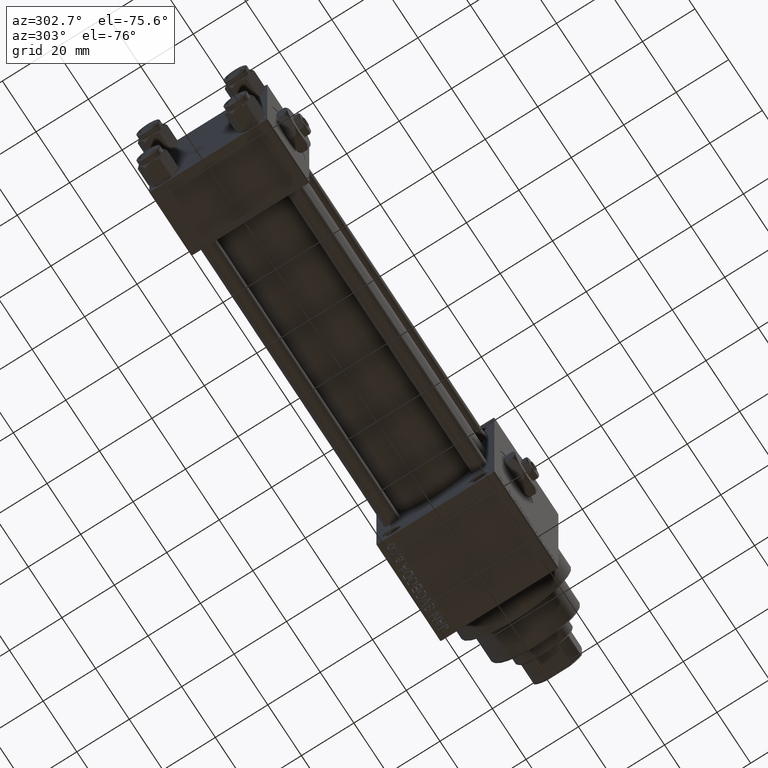
[diagram: clean part render]
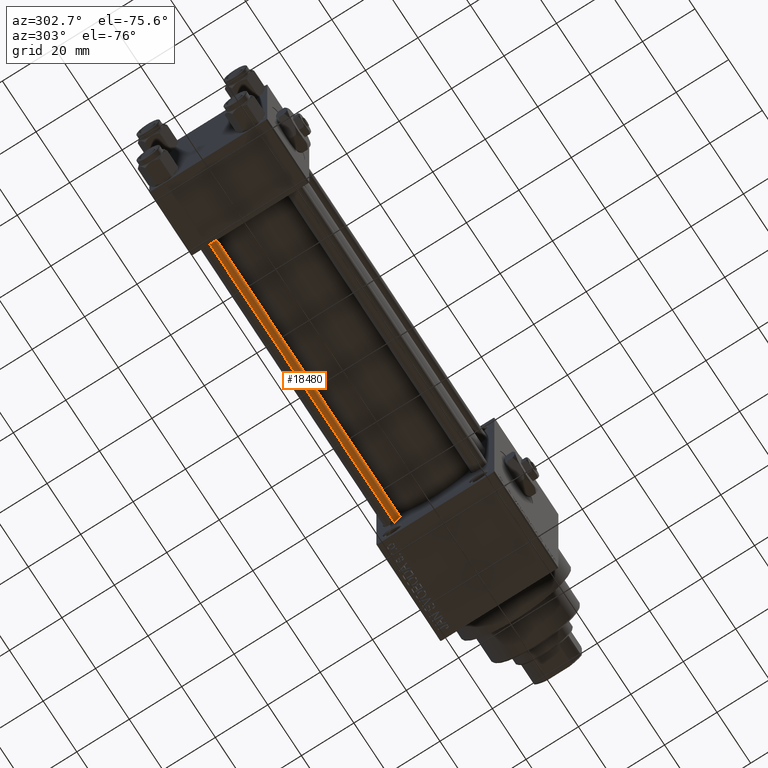
[diagram: same view with one face highlighted and labeled with its STEP entity id]
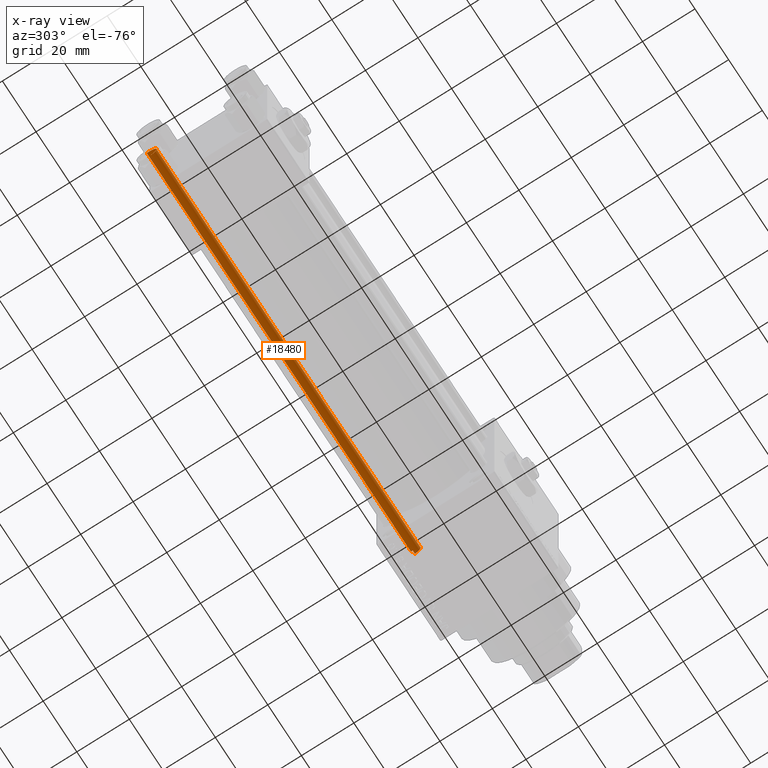
[diagram: x-ray of the same camera — body ghosted, the highlighted face saturated]
A machine part, auxiliary view. The second image highlights one B-rep face of the part: STEP entity #18480.
The next image is the same camera in x-ray: the body ghosted, the highlighted face saturated — about 0% of this face is hidden behind the body in this view.
In plain terms, the highlighted cylindrical surface (edge-blend (fillet) strip) has radius 3 mm, axis along (1, -0, 0).
Its self-contained STEP definition (entity closure, byte-faithful):
#501 = CARTESIAN_POINT ( 'NONE',  ( 3.000000000000000444, 3.673940397442060361E-16, 157.5000000000000000 ) ) ;
#1397 = CIRCLE ( 'NONE', #15676, 3.000000000000000444 ) ;
#1476 = DIRECTION ( 'NONE',  ( -1.000000000000000000, 0.000000000000000000, 0.000000000000000000 ) ) ;
#1726 = FACE_OUTER_BOUND ( 'NONE', #34801, .T. ) ;
#1931 = ORIENTED_EDGE ( 'NONE', *, *, #36455, .T. ) ;
#2170 = LINE ( 'NONE', #17333, #23752 ) ;
#3570 = DIRECTION ( 'NONE',  ( 1.000000000000000000, 0.000000000000000000, 0.000000000000000000 ) ) ;
#3691 = ORIENTED_EDGE ( 'NONE', *, *, #12056, .T. ) ;
#4426 = VERTEX_POINT ( 'NONE', #6584 ) ;
#5822 = VERTEX_POINT ( 'NONE', #39692 ) ;
#6584 = CARTESIAN_POINT ( 'NONE',  ( 3.000000000000000444, 3.673940397442060361E-16, 0.5000000000000281997 ) ) ;
#6970 = ORIENTED_EDGE ( 'NONE', *, *, #45259, .F. ) ;
#12056 = EDGE_CURVE ( 'NONE', #5822, #4426, #1397, .T. ) ;
#12959 = LINE ( 'NONE', #20641, #46893 ) ;
#13514 = AXIS2_PLACEMENT_3D ( 'NONE', #16644, #20870, #1476 ) ;
#15676 = AXIS2_PLACEMENT_3D ( 'NONE', #31267, #46434, #30770 ) ;
#16644 = CARTESIAN_POINT ( 'NONE',  ( 0.000000000000000000, 0.000000000000000000, 158.0000000000000000 ) ) ;
#16930 = DIRECTION ( 'NONE',  ( -0.000000000000000000, -0.000000000000000000, -1.000000000000000000 ) ) ;
#17119 = CARTESIAN_POINT ( 'NONE',  ( -3.000000000000000444, 0.000000000000000000, 157.5000000000000000 ) ) ;
#17333 = CARTESIAN_POINT ( 'NONE',  ( -3.000000000000000444, 0.000000000000000000, 158.0000000000000000 ) ) ;
#18480 = ADVANCED_FACE ( 'NONE', ( #1726 ), #24568, .T. ) ;
#20641 = CARTESIAN_POINT ( 'NONE',  ( 3.000000000000000444, 3.673940397442060361E-16, 158.0000000000000000 ) ) ;
#20870 = DIRECTION ( 'NONE',  ( -0.000000000000000000, -0.000000000000000000, -1.000000000000000000 ) ) ;
#22466 = DIRECTION ( 'NONE',  ( 0.000000000000000000, 0.000000000000000000, -1.000000000000000000 ) ) ;
#22943 = CARTESIAN_POINT ( 'NONE',  ( 0.000000000000000000, 0.000000000000000000, 157.5000000000000000 ) ) ;
#23752 = VECTOR ( 'NONE', #41126, 1000.000000000000000 ) ;
#23848 = AXIS2_PLACEMENT_3D ( 'NONE', #22943, #22466, #3570 ) ;
#24568 = CYLINDRICAL_SURFACE ( 'NONE', #13514, 3.000000000000000444 ) ;
#30770 = DIRECTION ( 'NONE',  ( 1.000000000000000000, 0.000000000000000000, 0.000000000000000000 ) ) ;
#31267 = CARTESIAN_POINT ( 'NONE',  ( 0.000000000000000000, 0.000000000000000000, 0.5000000000000281997 ) ) ;
#32558 = CIRCLE ( 'NONE', #23848, 3.000000000000000444 ) ;
#34801 = EDGE_LOOP ( 'NONE', ( #6970, #43515, #1931, #3691 ) ) ;
#36455 = EDGE_CURVE ( 'NONE', #45607, #5822, #2170, .T. ) ;
#39411 = VERTEX_POINT ( 'NONE', #501 ) ;
#39692 = CARTESIAN_POINT ( 'NONE',  ( -3.000000000000000444, 0.000000000000000000, 0.5000000000000281997 ) ) ;
#40132 = EDGE_CURVE ( 'NONE', #39411, #45607, #32558, .T. ) ;
#41126 = DIRECTION ( 'NONE',  ( -0.000000000000000000, -0.000000000000000000, -1.000000000000000000 ) ) ;
#43515 = ORIENTED_EDGE ( 'NONE', *, *, #40132, .T. ) ;
#45259 = EDGE_CURVE ( 'NONE', #39411, #4426, #12959, .T. ) ;
#45607 = VERTEX_POINT ( 'NONE', #17119 ) ;
#46434 = DIRECTION ( 'NONE',  ( -0.000000000000000000, -0.000000000000000000, 1.000000000000000000 ) ) ;
#46893 = VECTOR ( 'NONE', #16930, 1000.000000000000000 ) ;